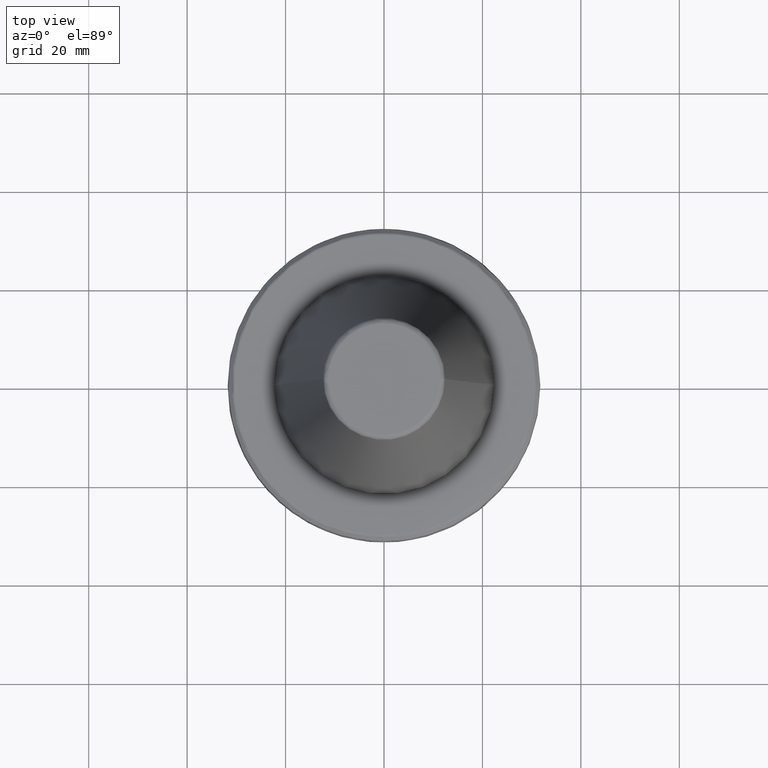
[diagram: clean part render]
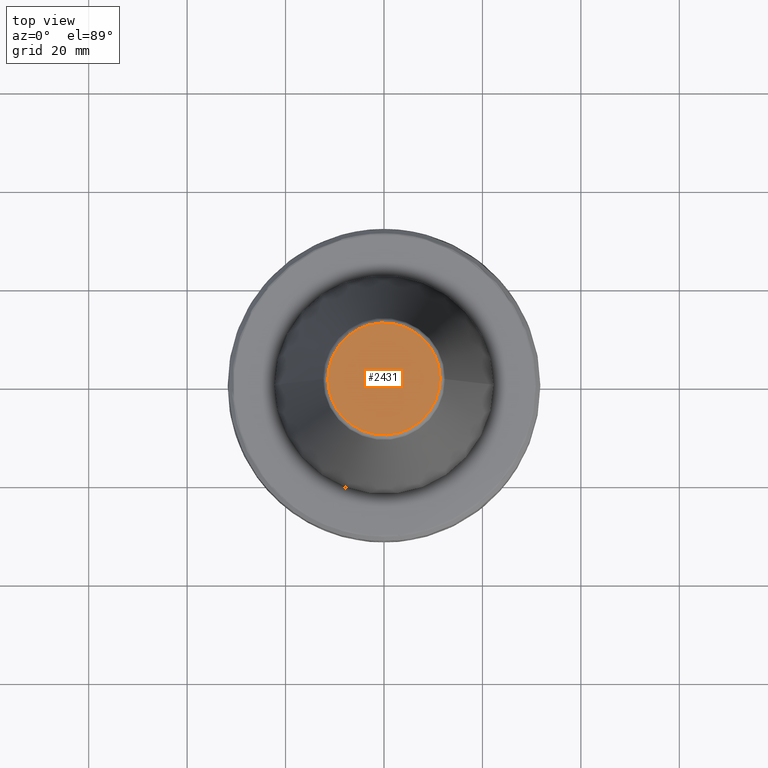
[diagram: same view with one face highlighted and labeled with its STEP entity id]
A machine part, top view. The second image highlights one B-rep face of the part: STEP entity #2431.
In plain terms, the highlighted planar face has unit normal (0, 0, 1).
Its self-contained STEP definition (entity closure, byte-faithful):
#408 = VERTEX_POINT ( 'NONE', #1863 ) ;
#565 = CARTESIAN_POINT ( 'NONE',  ( 11.38516258961892900, 0.0000000000000000000, 68.40000000000000600 ) ) ;
#566 = CARTESIAN_POINT ( 'NONE',  ( 11.38516258961892900, 0.0000000000000000000, 68.40000000000000600 ) ) ;
#569 = CARTESIAN_POINT ( 'NONE',  ( 11.38516258961892900, 22.77032517923785400, 68.40000000000000600 ) ) ;
#587 = CARTESIAN_POINT ( 'NONE',  ( -11.38516258961892900, 1.418516855507481300E-015, 68.40000000000000600 ) ) ;
#960 = EDGE_CURVE ( 'NONE', #408, #2210, #1318, .T. ) ;
#1080 = ORIENTED_EDGE ( 'NONE', *, *, #960, .F. ) ;
#1318 =( BOUNDED_CURVE ( )  B_SPLINE_CURVE ( 3, ( #587, #1718, #569, #566 ),
 .UNSPECIFIED., .F., .T. ) 
 B_SPLINE_CURVE_WITH_KNOTS ( ( 4, 4 ),
 ( 0.0000000000000000000, 1.000000000000000000 ),
 .UNSPECIFIED. ) 
 CURVE ( )  GEOMETRIC_REPRESENTATION_ITEM ( )  RATIONAL_B_SPLINE_CURVE ( ( 1.000000000000000000, 0.3333333333333333700, 0.3333333333333333700, 1.000000000000000000 ) ) 
 REPRESENTATION_ITEM ( '' )  );
#1360 = ORIENTED_EDGE ( 'NONE', *, *, #2223, .F. ) ;
#1642 = FACE_OUTER_BOUND ( 'NONE', #2497, .T. ) ;
#1714 = CARTESIAN_POINT ( 'NONE',  ( 11.38516258961892900, 0.0000000000000000000, 68.40000000000000600 ) ) ;
#1718 = CARTESIAN_POINT ( 'NONE',  ( -11.38516258961892500, 22.77032517923785400, 68.40000000000000600 ) ) ;
#1863 = CARTESIAN_POINT ( 'NONE',  ( -11.38516258961892900, 1.418516855507481300E-015, 68.40000000000000600 ) ) ;
#1929 = CARTESIAN_POINT ( 'NONE',  ( -11.38516258961892900, 1.418516855507481300E-015, 68.40000000000000600 ) ) ;
#2041 = CARTESIAN_POINT ( 'NONE',  ( 11.38516258961892900, -22.77032517923785400, 68.40000000000000600 ) ) ;
#2091 = CARTESIAN_POINT ( 'NONE',  ( -11.38516258961893300, -22.77032517923785400, 68.40000000000000600 ) ) ;
#2210 = VERTEX_POINT ( 'NONE', #1714 ) ;
#2223 = EDGE_CURVE ( 'NONE', #2210, #408, #2949, .T. ) ;
#2388 = AXIS2_PLACEMENT_3D ( 'NONE', #2491, #2484, #2448 ) ;
#2431 = ADVANCED_FACE ( 'NONE', ( #1642 ), #2524, .T. ) ;
#2448 = DIRECTION ( 'NONE',  ( 1.000000000000000000, 0.0000000000000000000, -0.0000000000000000000 ) ) ;
#2484 = DIRECTION ( 'NONE',  ( 0.0000000000000000000, 0.0000000000000000000, 1.000000000000000000 ) ) ;
#2491 = CARTESIAN_POINT ( 'NONE',  ( 0.0000000000000000000, 0.0000000000000000000, 68.40000000000000600 ) ) ;
#2497 = EDGE_LOOP ( 'NONE', ( #1080, #1360 ) ) ;
#2524 = PLANE ( 'NONE',  #2388 ) ;
#2949 =( BOUNDED_CURVE ( )  B_SPLINE_CURVE ( 3, ( #565, #2041, #2091, #1929 ),
 .UNSPECIFIED., .F., .F. ) 
 B_SPLINE_CURVE_WITH_KNOTS ( ( 4, 4 ),
 ( 0.0000000000000000000, 1.000000000000000000 ),
 .UNSPECIFIED. ) 
 CURVE ( )  GEOMETRIC_REPRESENTATION_ITEM ( )  RATIONAL_B_SPLINE_CURVE ( ( 1.000000000000000000, 0.3333333333333333700, 0.3333333333333333700, 1.000000000000000000 ) ) 
 REPRESENTATION_ITEM ( '' )  );